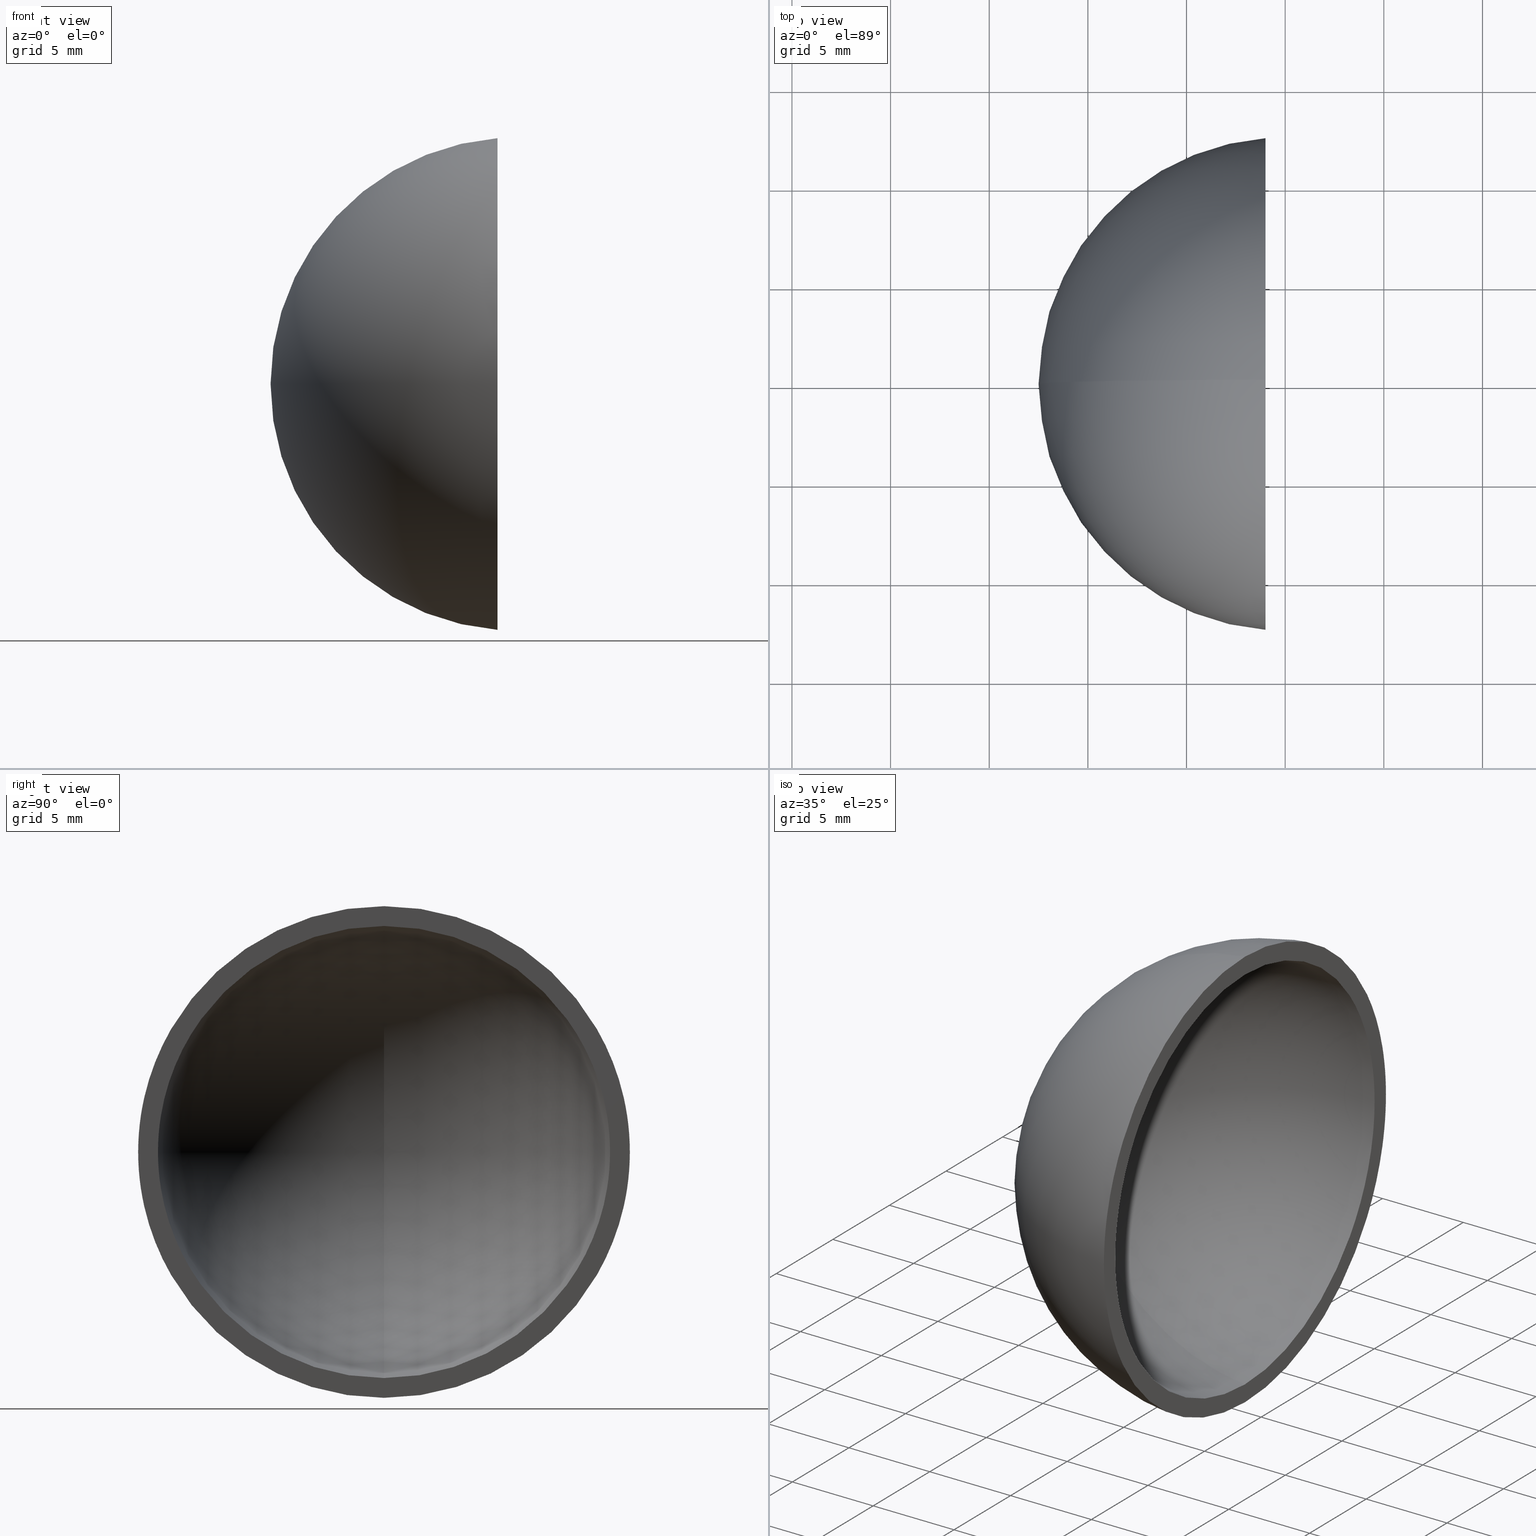
[diagram: canonical four-view strip — front | top / right | iso, engineering-drawing reading convention]
A machine part, canonical four-view strip (front | top / right | iso — engineering-drawing reading convention). The complete STEP part file that produces these views, byte-faithful:
ISO-10303-21;
HEADER;
FILE_DESCRIPTION (( 'STEP AP214' ),
    '1' );
FILE_NAME ('197539.STEP',
    '2019-07-23T02:02:51',
    ( 'user' ),
    ( '΢���й�' ),
    'SwSTEP 2.0',
    'SolidWorks 2016',
    '' );
FILE_SCHEMA (( 'AUTOMOTIVE_DESIGN' ));
ENDSEC;

DATA;
#1 = FACE_OUTER_BOUND ( 'NONE', #132, .T. ) ;
#2 = FILL_AREA_STYLE ('',( #165 ) ) ;
#3 = AXIS2_PLACEMENT_3D ( 'NONE', #117, #153, #108 ) ;
#4 =( NAMED_UNIT ( * ) SI_UNIT ( $, .STERADIAN. ) SOLID_ANGLE_UNIT ( ) );
#5 = ORIENTED_EDGE ( 'NONE', *, *, #30, .F. ) ;
#6 =( GEOMETRIC_REPRESENTATION_CONTEXT ( 3 ) GLOBAL_UNCERTAINTY_ASSIGNED_CONTEXT ( ( #118 ) ) GLOBAL_UNIT_ASSIGNED_CONTEXT ( ( #146, #149, #92 ) ) REPRESENTATION_CONTEXT ( 'NONE', 'WORKASPACE' ) );
#7 =( NAMED_UNIT ( * ) PLANE_ANGLE_UNIT ( ) SI_UNIT ( $, .RADIAN. ) );
#8 = ORIENTED_EDGE ( 'NONE', *, *, #170, .F. ) ;
#9 = UNCERTAINTY_MEASURE_WITH_UNIT (LENGTH_MEASURE( 1.000000000000000100E-005 ), #166, 'distance_accuracy_value', 'NONE');
#10 = ORIENTED_EDGE ( 'NONE', *, *, #102, .F. ) ;
#11 =( NAMED_UNIT ( * ) PLANE_ANGLE_UNIT ( ) SI_UNIT ( $, .RADIAN. ) );
#12 = DIRECTION ( 'NONE',  ( 0.0000000000000000000, -1.224646799147353200E-016, -1.000000000000000000 ) ) ;
#13 = CIRCLE ( 'NONE', #25, 11.45643923738959900 ) ;
#14 = DIRECTION ( 'NONE',  ( 0.0000000000000000000, 0.0000000000000000000, -1.000000000000000000 ) ) ;
#15 = ORIENTED_EDGE ( 'NONE', *, *, #17, .T. ) ;
#16 = DIRECTION ( 'NONE',  ( 0.0000000000000000000, 0.0000000000000000000, 1.000000000000000000 ) ) ;
#17 = EDGE_CURVE ( 'NONE', #99, #76, #57, .T. ) ;
#18 = AXIS2_PLACEMENT_3D ( 'NONE', #115, #112, #51 ) ;
#19 = FACE_OUTER_BOUND ( 'NONE', #130, .T. ) ;
#20 = ADVANCED_FACE ( 'NONE', ( #98, #90 ), #161, .F. ) ;
#21 = PRESENTATION_STYLE_ASSIGNMENT (( #59 ) ) ;
#22 = CIRCLE ( 'NONE', #147, 11.50000000000000000 ) ;
#23 = PRODUCT_DEFINITION_CONTEXT ( 'detailed design', #32, 'design' ) ;
#24 = ORIENTED_EDGE ( 'NONE', *, *, #170, .T. ) ;
#25 = AXIS2_PLACEMENT_3D ( 'NONE', #160, #83, #105 ) ;
#26 = EDGE_LOOP ( 'NONE', ( #110, #168, #69 ) ) ;
#27 = DIRECTION ( 'NONE',  ( 1.000000000000000000, -0.0000000000000000000, -0.0000000000000000000 ) ) ;
#28 = AXIS2_PLACEMENT_3D ( 'NONE', #163, #91, #12 ) ;
#29 = DIRECTION ( 'NONE',  ( 0.0000000000000000000, 0.0000000000000000000, 1.000000000000000000 ) ) ;
#30 = EDGE_CURVE ( 'NONE', #36, #156, #124, .T. ) ;
#31 = DIRECTION ( 'NONE',  ( 0.0000000000000000000, -1.000000000000000000, 0.0000000000000000000 ) ) ;
#32 = APPLICATION_CONTEXT ( 'automotive_design' ) ;
#33 = ORIENTED_EDGE ( 'NONE', *, *, #94, .F. ) ;
#34 = DIRECTION ( 'NONE',  ( 0.0000000000000000000, -1.000000000000000000, 0.0000000000000000000 ) ) ;
#35 = COLOUR_RGB ( '',1.000000000000000000, 1.000000000000000000, 1.000000000000000000 ) ;
#36 = VERTEX_POINT ( 'NONE', #103 ) ;
#37 = EDGE_CURVE ( 'NONE', #136, #99, #88, .T. ) ;
#38 = MECHANICAL_DESIGN_GEOMETRIC_PRESENTATION_REPRESENTATION (  '', ( #104 ), #87 ) ;
#39 = CIRCLE ( 'NONE', #28, 12.50000000000000000 ) ;
#40 = DIRECTION ( 'NONE',  ( 0.0000000000000000000, 0.0000000000000000000, 1.000000000000000000 ) ) ;
#41 = DIRECTION ( 'NONE',  ( 0.0000000000000000000, 0.0000000000000000000, 1.000000000000000000 ) ) ;
#42 = ORIENTED_EDGE ( 'NONE', *, *, #45, .T. ) ;
#43 = CARTESIAN_POINT ( 'NONE',  ( 0.0000000000000000000, 0.0000000000000000000, 0.0000000000000000000 ) ) ;
#44 = AXIS2_PLACEMENT_3D ( 'NONE', #43, #96, #16 ) ;
#45 = EDGE_CURVE ( 'NONE', #171, #156, #22, .T. ) ;
#46 = DIRECTION ( 'NONE',  ( 0.0000000000000000000, -1.224646799147353200E-016, -1.000000000000000000 ) ) ;
#47 = AXIS2_PLACEMENT_3D ( 'NONE', #167, #67, #162 ) ;
#48 = ORIENTED_EDGE ( 'NONE', *, *, #120, .T. ) ;
#49 = COLOUR_RGB ( '',1.000000000000000000, 1.000000000000000000, 1.000000000000000000 ) ;
#50 =( GEOMETRIC_REPRESENTATION_CONTEXT ( 3 ) GLOBAL_UNCERTAINTY_ASSIGNED_CONTEXT ( ( #9 ) ) GLOBAL_UNIT_ASSIGNED_CONTEXT ( ( #166, #7, #58 ) ) REPRESENTATION_CONTEXT ( 'NONE', 'WORKASPACE' ) );
#51 = DIRECTION ( 'NONE',  ( 0.0000000000000000000, 0.0000000000000000000, -1.000000000000000000 ) ) ;
#52 = FILL_AREA_STYLE_COLOUR ( '', #35 ) ;
#53 = AXIS2_PLACEMENT_3D ( 'NONE', #137, #34, #109 ) ;
#54 = SURFACE_STYLE_FILL_AREA ( #128 ) ;
#55 =( LENGTH_UNIT ( ) NAMED_UNIT ( * ) SI_UNIT ( .MILLI., .METRE. ) );
#56 = CARTESIAN_POINT ( 'NONE',  ( 0.0000000000000000000, 0.0000000000000000000, 0.0000000000000000000 ) ) ;
#57 = CIRCLE ( 'NONE', #18, 12.45993579437711300 ) ;
#58 =( NAMED_UNIT ( * ) SI_UNIT ( $, .STERADIAN. ) SOLID_ANGLE_UNIT ( ) );
#59 = SURFACE_STYLE_USAGE ( .BOTH. , #155 ) ;
#60 = AXIS2_PLACEMENT_3D ( 'NONE', #82, #131, #40 ) ;
#61 = ORIENTED_EDGE ( 'NONE', *, *, #120, .F. ) ;
#62 = STYLED_ITEM ( 'NONE', ( #21 ), #142 ) ;
#63 = ORIENTED_EDGE ( 'NONE', *, *, #94, .T. ) ;
#64 = CARTESIAN_POINT ( 'NONE',  ( -12.50000000000000000, 0.0000000000000000000, 7.654042494670957600E-016 ) ) ;
#65 = SPHERICAL_SURFACE ( 'NONE', #44, 12.50000000000000000 ) ;
#66 = PRESENTATION_LAYER_ASSIGNMENT (  '', '', ( #104 ) ) ;
#67 = DIRECTION ( 'NONE',  ( 0.0000000000000000000, -1.000000000000000000, 0.0000000000000000000 ) ) ;
#68 = CARTESIAN_POINT ( 'NONE',  ( -0.9999999999999967800, -1.403009164169531900E-015, -11.45643923738959900 ) ) ;
#69 = ORIENTED_EDGE ( 'NONE', *, *, #17, .F. ) ;
#70 = PRODUCT ( '197539', '197539', '', ( #123 ) ) ;
#71 = CARTESIAN_POINT ( 'NONE',  ( 0.0000000000000000000, 0.0000000000000000000, 0.0000000000000000000 ) ) ;
#72 = PRODUCT_RELATED_PRODUCT_CATEGORY ( 'part', '', ( #70 ) ) ;
#73 = ADVANCED_FACE ( 'NONE', ( #19 ), #159, .T. ) ;
#74 = ORIENTED_EDGE ( 'NONE', *, *, #30, .T. ) ;
#75 = AXIS2_PLACEMENT_3D ( 'NONE', #93, #31, #29 ) ;
#76 = VERTEX_POINT ( 'NONE', #125 ) ;
#77 = DIRECTION ( 'NONE',  ( 0.0000000000000000000, 1.000000000000000000, 0.0000000000000000000 ) ) ;
#78 = DIRECTION ( 'NONE',  ( 0.0000000000000000000, 0.0000000000000000000, -1.000000000000000000 ) ) ;
#79 = AXIS2_PLACEMENT_3D ( 'NONE', #89, #107, #14 ) ;
#80 = SURFACE_SIDE_STYLE ('',( #154 ) ) ;
#81 = DIRECTION ( 'NONE',  ( 0.0000000000000000000, 1.000000000000000000, 0.0000000000000000000 ) ) ;
#82 = CARTESIAN_POINT ( 'NONE',  ( -0.9999999999999967800, 0.0000000000000000000, 11.45643923738959900 ) ) ;
#83 = DIRECTION ( 'NONE',  ( 1.000000000000000000, -0.0000000000000000000, -0.0000000000000000000 ) ) ;
#84 = CARTESIAN_POINT ( 'NONE',  ( -0.9999999999999965600, 0.0000000000000000000, 12.45993579437711100 ) ) ;
#85 = FACE_OUTER_BOUND ( 'NONE', #151, .T. ) ;
#86 = ADVANCED_FACE ( 'NONE', ( #85 ), #119, .F. ) ;
#87 =( GEOMETRIC_REPRESENTATION_CONTEXT ( 3 ) GLOBAL_UNCERTAINTY_ASSIGNED_CONTEXT ( ( #152 ) ) GLOBAL_UNIT_ASSIGNED_CONTEXT ( ( #55, #11, #4 ) ) REPRESENTATION_CONTEXT ( 'NONE', 'WORKASPACE' ) );
#88 = CIRCLE ( 'NONE', #138, 12.50000000000000000 ) ;
#89 = CARTESIAN_POINT ( 'NONE',  ( -0.9999999999999967800, 0.0000000000000000000, 0.0000000000000000000 ) ) ;
#90 = FACE_OUTER_BOUND ( 'NONE', #158, .T. ) ;
#91 = DIRECTION ( 'NONE',  ( 0.0000000000000000000, -1.000000000000000000, 1.224646799147353200E-016 ) ) ;
#92 =( NAMED_UNIT ( * ) SI_UNIT ( $, .STERADIAN. ) SOLID_ANGLE_UNIT ( ) );
#93 = CARTESIAN_POINT ( 'NONE',  ( 0.0000000000000000000, 0.0000000000000000000, 0.0000000000000000000 ) ) ;
#94 = EDGE_CURVE ( 'NONE', #171, #36, #157, .T. ) ;
#95 = ORIENTED_EDGE ( 'NONE', *, *, #37, .T. ) ;
#96 = DIRECTION ( 'NONE',  ( 0.0000000000000000000, -1.000000000000000000, 0.0000000000000000000 ) ) ;
#97 = AXIS2_PLACEMENT_3D ( 'NONE', #148, #27, #78 ) ;
#98 = FACE_BOUND ( 'NONE', #129, .T. ) ;
#99 = VERTEX_POINT ( 'NONE', #84 ) ;
#100 = MANIFOLD_SOLID_BREP ( '��ת1', #145 ) ;
#101 = CIRCLE ( 'NONE', #97, 12.45993579437711300 ) ;
#102 = EDGE_CURVE ( 'NONE', #136, #76, #39, .T. ) ;
#103 = CARTESIAN_POINT ( 'NONE',  ( -0.9999999999999967800, 0.0000000000000000000, 11.45643923738959900 ) ) ;
#104 = STYLED_ITEM ( 'NONE', ( #114 ), #100 ) ;
#105 = DIRECTION ( 'NONE',  ( 0.0000000000000000000, 0.0000000000000000000, -1.000000000000000000 ) ) ;
#106 = DIRECTION ( 'NONE',  ( 0.0000000000000000000, -1.000000000000000000, 1.224646799147353200E-016 ) ) ;
#107 = DIRECTION ( 'NONE',  ( 1.000000000000000000, -0.0000000000000000000, -0.0000000000000000000 ) ) ;
#108 = DIRECTION ( 'NONE',  ( 1.000000000000000000, 0.0000000000000000000, 0.0000000000000000000 ) ) ;
#109 = DIRECTION ( 'NONE',  ( 0.0000000000000000000, 0.0000000000000000000, 1.000000000000000000 ) ) ;
#110 = ORIENTED_EDGE ( 'NONE', *, *, #37, .F. ) ;
#111 = APPLICATION_PROTOCOL_DEFINITION ( 'draft international standard', 'automotive_design', 1998, #32 ) ;
#112 = DIRECTION ( 'NONE',  ( 1.000000000000000000, -0.0000000000000000000, -0.0000000000000000000 ) ) ;
#113 = SHAPE_DEFINITION_REPRESENTATION ( #172, #142 ) ;
#114 = PRESENTATION_STYLE_ASSIGNMENT (( #121 ) ) ;
#115 = CARTESIAN_POINT ( 'NONE',  ( -0.9999999999999967800, 0.0000000000000000000, 0.0000000000000000000 ) ) ;
#116 = MECHANICAL_DESIGN_GEOMETRIC_PRESENTATION_REPRESENTATION (  '', ( #62 ), #50 ) ;
#117 = CARTESIAN_POINT ( 'NONE',  ( 0.0000000000000000000, 0.0000000000000000000, 0.0000000000000000000 ) ) ;
#118 = UNCERTAINTY_MEASURE_WITH_UNIT (LENGTH_MEASURE( 1.000000000000000100E-005 ), #146, 'distance_accuracy_value', 'NONE');
#119 = SPHERICAL_SURFACE ( 'NONE', #53, 11.50000000000000000 ) ;
#120 = EDGE_CURVE ( 'NONE', #156, #36, #13, .T. ) ;
#121 = SURFACE_STYLE_USAGE ( .BOTH. , #80 ) ;
#122 = CARTESIAN_POINT ( 'NONE',  ( 0.0000000000000000000, 0.0000000000000000000, 0.0000000000000000000 ) ) ;
#123 = PRODUCT_CONTEXT ( 'NONE', #141, 'mechanical' ) ;
#124 = CIRCLE ( 'NONE', #79, 11.45643923738959900 ) ;
#125 = CARTESIAN_POINT ( 'NONE',  ( -0.9999999999999965600, -1.525902048816546600E-015, -12.45993579437711100 ) ) ;
#126 = PRODUCT_DEFINITION ( 'δ֪', '', #150, #23 ) ;
#127 = ADVANCED_FACE ( 'NONE', ( #1 ), #143, .F. ) ;
#128 = FILL_AREA_STYLE ('',( #52 ) ) ;
#129 = EDGE_LOOP ( 'NONE', ( #5, #61 ) ) ;
#130 = EDGE_LOOP ( 'NONE', ( #10, #95, #8 ) ) ;
#131 = DIRECTION ( 'NONE',  ( -1.000000000000000000, 0.0000000000000000000, 0.0000000000000000000 ) ) ;
#132 = EDGE_LOOP ( 'NONE', ( #33, #42, #48 ) ) ;
#133 = CARTESIAN_POINT ( 'NONE',  ( -11.50000000000000000, 0.0000000000000000000, 7.041719095097280900E-016 ) ) ;
#134 = APPLICATION_PROTOCOL_DEFINITION ( 'draft international standard', 'automotive_design', 1998, #141 ) ;
#135 = DIRECTION ( 'NONE',  ( 0.0000000000000000000, 0.0000000000000000000, 1.000000000000000000 ) ) ;
#136 = VERTEX_POINT ( 'NONE', #64 ) ;
#137 = CARTESIAN_POINT ( 'NONE',  ( 0.0000000000000000000, 0.0000000000000000000, 0.0000000000000000000 ) ) ;
#138 = AXIS2_PLACEMENT_3D ( 'NONE', #56, #81, #41 ) ;
#139 = AXIS2_PLACEMENT_3D ( 'NONE', #122, #77, #135 ) ;
#140 = ADVANCED_FACE ( 'NONE', ( #169 ), #65, .T. ) ;
#141 = APPLICATION_CONTEXT ( 'automotive_design' ) ;
#142 = ADVANCED_BREP_SHAPE_REPRESENTATION ( '197539', ( #100, #3 ), #6 ) ;
#143 = SPHERICAL_SURFACE ( 'NONE', #75, 11.50000000000000000 ) ;
#144 = PRESENTATION_LAYER_ASSIGNMENT (  '', '', ( #62 ) ) ;
#145 = CLOSED_SHELL ( 'NONE', ( #127, #140, #73, #20, #86 ) ) ;
#146 =( LENGTH_UNIT ( ) NAMED_UNIT ( * ) SI_UNIT ( .MILLI., .METRE. ) );
#147 = AXIS2_PLACEMENT_3D ( 'NONE', #71, #106, #46 ) ;
#148 = CARTESIAN_POINT ( 'NONE',  ( -0.9999999999999967800, 0.0000000000000000000, 0.0000000000000000000 ) ) ;
#149 =( NAMED_UNIT ( * ) PLANE_ANGLE_UNIT ( ) SI_UNIT ( $, .RADIAN. ) );
#150 = PRODUCT_DEFINITION_FORMATION_WITH_SPECIFIED_SOURCE ( '�κ�', '', #70, .NOT_KNOWN. ) ;
#151 = EDGE_LOOP ( 'NONE', ( #164, #63, #74 ) ) ;
#152 = UNCERTAINTY_MEASURE_WITH_UNIT (LENGTH_MEASURE( 1.000000000000000100E-005 ), #55, 'distance_accuracy_value', 'NONE');
#153 = DIRECTION ( 'NONE',  ( 0.0000000000000000000, 0.0000000000000000000, 1.000000000000000000 ) ) ;
#154 = SURFACE_STYLE_FILL_AREA ( #2 ) ;
#155 = SURFACE_SIDE_STYLE ('',( #54 ) ) ;
#156 = VERTEX_POINT ( 'NONE', #68 ) ;
#157 = CIRCLE ( 'NONE', #139, 11.50000000000000000 ) ;
#158 = EDGE_LOOP ( 'NONE', ( #15, #24 ) ) ;
#159 = SPHERICAL_SURFACE ( 'NONE', #47, 12.50000000000000000 ) ;
#160 = CARTESIAN_POINT ( 'NONE',  ( -0.9999999999999967800, 0.0000000000000000000, 0.0000000000000000000 ) ) ;
#161 = PLANE ( 'NONE',  #60 ) ;
#162 = DIRECTION ( 'NONE',  ( 0.0000000000000000000, 0.0000000000000000000, 1.000000000000000000 ) ) ;
#163 = CARTESIAN_POINT ( 'NONE',  ( 0.0000000000000000000, 0.0000000000000000000, 0.0000000000000000000 ) ) ;
#164 = ORIENTED_EDGE ( 'NONE', *, *, #45, .F. ) ;
#165 = FILL_AREA_STYLE_COLOUR ( '', #49 ) ;
#166 =( LENGTH_UNIT ( ) NAMED_UNIT ( * ) SI_UNIT ( .MILLI., .METRE. ) );
#167 = CARTESIAN_POINT ( 'NONE',  ( 0.0000000000000000000, 0.0000000000000000000, 0.0000000000000000000 ) ) ;
#168 = ORIENTED_EDGE ( 'NONE', *, *, #102, .T. ) ;
#169 = FACE_OUTER_BOUND ( 'NONE', #26, .T. ) ;
#170 = EDGE_CURVE ( 'NONE', #76, #99, #101, .T. ) ;
#171 = VERTEX_POINT ( 'NONE', #133 ) ;
#172 = PRODUCT_DEFINITION_SHAPE ( 'NONE', 'NONE',  #126 ) ;
ENDSEC;
END-ISO-10303-21;
